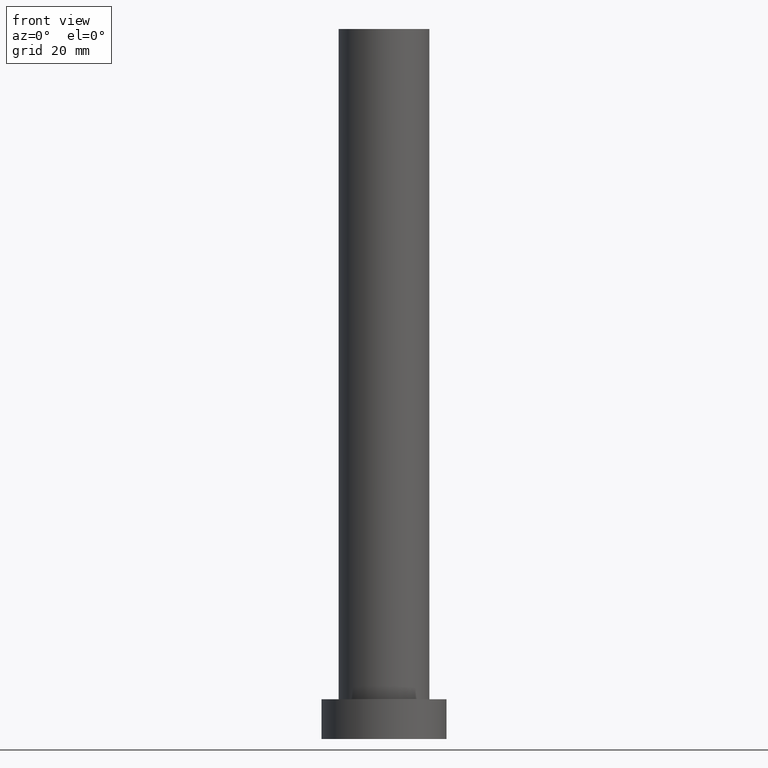
[diagram: clean part render]
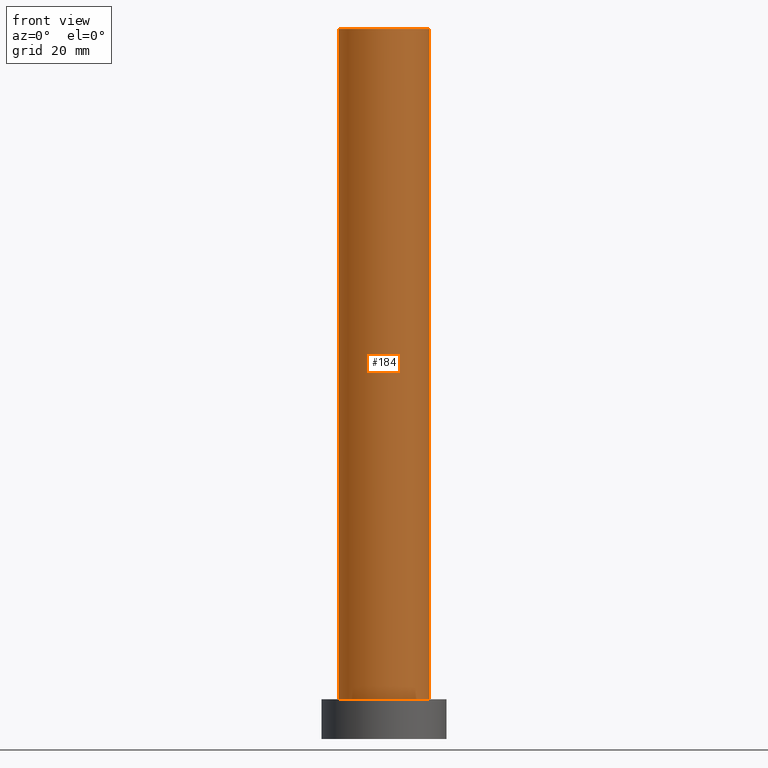
[diagram: same view with one face highlighted and labeled with its STEP entity id]
A machine part, front view. The second image highlights one B-rep face of the part: STEP entity #184.
In plain terms, the highlighted cylindrical surface (partial cylindrical patch) has radius 8 mm, axis along (-0, -0, -1).
Its self-contained STEP definition (entity closure, byte-faithful):
#7 = EDGE_CURVE ( 'NONE', #229, #14, #134, .T. ) ;
#8 = VERTEX_POINT ( 'NONE', #95 ) ;
#14 = VERTEX_POINT ( 'NONE', #80 ) ;
#25 = CIRCLE ( 'NONE', #163, 8.000000000000000000 ) ;
#32 = ORIENTED_EDGE ( 'NONE', *, *, #85, .F. ) ;
#33 = CARTESIAN_POINT ( 'NONE',  ( -8.000000000000000000, 0.000000000000000000, 125.0000000000000000 ) ) ;
#37 = DIRECTION ( 'NONE',  ( 1.000000000000000000, 0.000000000000000000, 0.000000000000000000 ) ) ;
#44 = EDGE_CURVE ( 'NONE', #90, #8, #155, .T. ) ;
#57 = AXIS2_PLACEMENT_3D ( 'NONE', #63, #61, #37 ) ;
#61 = DIRECTION ( 'NONE',  ( 0.000000000000000000, 0.000000000000000000, 1.000000000000000000 ) ) ;
#63 = CARTESIAN_POINT ( 'NONE',  ( 0.000000000000000000, 0.000000000000000000, 7.000000000000000000 ) ) ;
#66 = CARTESIAN_POINT ( 'NONE',  ( 8.000000000000000000, 9.797174393178825657E-16, 125.0000000000000000 ) ) ;
#67 = ORIENTED_EDGE ( 'NONE', *, *, #7, .F. ) ;
#76 = ORIENTED_EDGE ( 'NONE', *, *, #161, .T. ) ;
#80 = CARTESIAN_POINT ( 'NONE',  ( 8.000000000000000000, 9.797174393178825657E-16, 7.000000000000000000 ) ) ;
#85 = EDGE_CURVE ( 'NONE', #90, #229, #25, .T. ) ;
#87 = DIRECTION ( 'NONE',  ( -0.000000000000000000, -0.000000000000000000, -1.000000000000000000 ) ) ;
#90 = VERTEX_POINT ( 'NONE', #33 ) ;
#95 = CARTESIAN_POINT ( 'NONE',  ( -8.000000000000000000, 0.000000000000000000, 7.000000000000000000 ) ) ;
#101 = CARTESIAN_POINT ( 'NONE',  ( 0.000000000000000000, 0.000000000000000000, 125.0000000000000000 ) ) ;
#113 = CARTESIAN_POINT ( 'NONE',  ( 0.000000000000000000, 0.000000000000000000, 125.0000000000000000 ) ) ;
#115 = VECTOR ( 'NONE', #215, 1000.000000000000000 ) ;
#133 = DIRECTION ( 'NONE',  ( 1.000000000000000000, 0.000000000000000000, 0.000000000000000000 ) ) ;
#134 = LINE ( 'NONE', #236, #115 ) ;
#146 = DIRECTION ( 'NONE',  ( -1.000000000000000000, 0.000000000000000000, 0.000000000000000000 ) ) ;
#148 = FACE_OUTER_BOUND ( 'NONE', #244, .T. ) ;
#149 = VECTOR ( 'NONE', #194, 1000.000000000000000 ) ;
#155 = LINE ( 'NONE', #190, #149 ) ;
#161 = EDGE_CURVE ( 'NONE', #8, #14, #206, .T. ) ;
#163 = AXIS2_PLACEMENT_3D ( 'NONE', #113, #195, #133 ) ;
#172 = ORIENTED_EDGE ( 'NONE', *, *, #44, .T. ) ;
#175 = AXIS2_PLACEMENT_3D ( 'NONE', #101, #87, #146 ) ;
#184 = ADVANCED_FACE ( 'NONE', ( #148 ), #226, .T. ) ;
#190 = CARTESIAN_POINT ( 'NONE',  ( -8.000000000000000000, 0.000000000000000000, 125.0000000000000000 ) ) ;
#194 = DIRECTION ( 'NONE',  ( -0.000000000000000000, -0.000000000000000000, -1.000000000000000000 ) ) ;
#195 = DIRECTION ( 'NONE',  ( 0.000000000000000000, 0.000000000000000000, 1.000000000000000000 ) ) ;
#206 = CIRCLE ( 'NONE', #57, 8.000000000000000000 ) ;
#215 = DIRECTION ( 'NONE',  ( -0.000000000000000000, -0.000000000000000000, -1.000000000000000000 ) ) ;
#226 = CYLINDRICAL_SURFACE ( 'NONE', #175, 8.000000000000000000 ) ;
#229 = VERTEX_POINT ( 'NONE', #66 ) ;
#236 = CARTESIAN_POINT ( 'NONE',  ( 8.000000000000000000, 9.797174393178825657E-16, 125.0000000000000000 ) ) ;
#244 = EDGE_LOOP ( 'NONE', ( #67, #32, #172, #76 ) ) ;